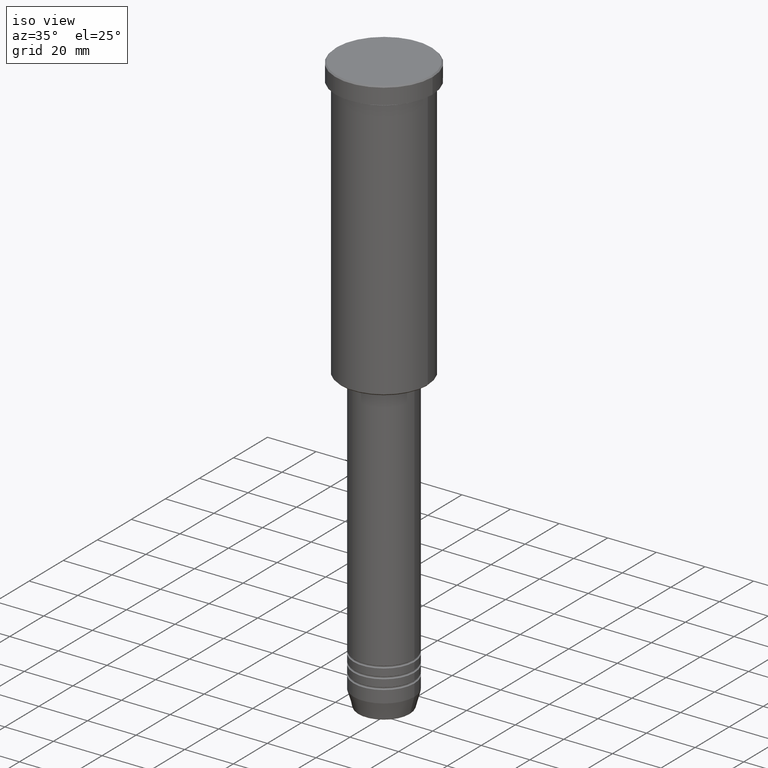
[diagram: clean part render]
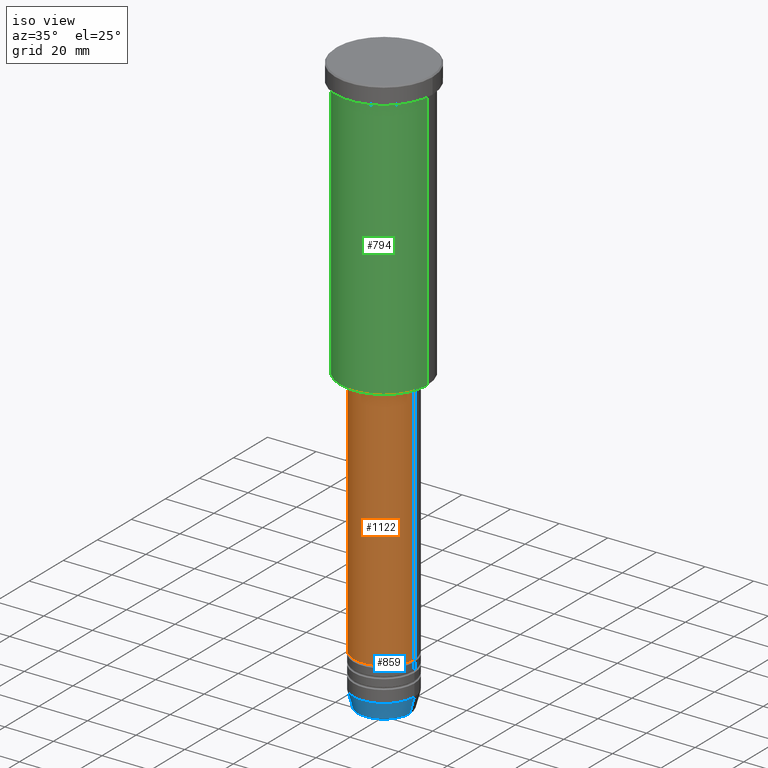
[diagram: same view with three faces highlighted in distinct colors, each labeled with its STEP entity id]
A machine part, iso view with three faces highlighted in distinct colors.
Their STEP definitions:

[orange] entity #1122 — the highlighted cylindrical surface (partial cylindrical patch) has radius 12.5 mm, axis along (-0, -0, 1).
#26 = CIRCLE ( 'NONE', #619, 12.50000000000000000 ) ;
#27 = CARTESIAN_POINT ( 'NONE',  ( 0.000000000000000000, 0.000000000000000000, 0.000000000000000000 ) ) ;
#28 = VERTEX_POINT ( 'NONE', #1174 ) ;
#57 = EDGE_CURVE ( 'NONE', #589, #28, #342, .T. ) ;
#82 = CARTESIAN_POINT ( 'NONE',  ( -12.50000000000000000, 1.530808498934191521E-15, -117.0000000000000142 ) ) ;
#139 = DIRECTION ( 'NONE',  ( 1.000000000000000000, 0.000000000000000000, 0.000000000000000000 ) ) ;
#153 = EDGE_LOOP ( 'NONE', ( #399, #771, #229, #271 ) ) ;
#218 = EDGE_CURVE ( 'NONE', #653, #28, #492, .T. ) ;
#229 = ORIENTED_EDGE ( 'NONE', *, *, #218, .T. ) ;
#242 = DIRECTION ( 'NONE',  ( 1.000000000000000000, 0.000000000000000000, 0.000000000000000000 ) ) ;
#266 = CARTESIAN_POINT ( 'NONE',  ( 0.000000000000000000, 0.000000000000000000, -117.0000000000000142 ) ) ;
#271 = ORIENTED_EDGE ( 'NONE', *, *, #57, .F. ) ;
#330 = DIRECTION ( 'NONE',  ( -0.000000000000000000, -0.000000000000000000, 1.000000000000000000 ) ) ;
#334 = CARTESIAN_POINT ( 'NONE',  ( -12.50000000000000000, 1.530808498934191521E-15, -219.0000000000000000 ) ) ;
#342 = CIRCLE ( 'NONE', #424, 12.50000000000000000 ) ;
#387 = DIRECTION ( 'NONE',  ( -0.000000000000000000, -0.000000000000000000, 1.000000000000000000 ) ) ;
#396 = CARTESIAN_POINT ( 'NONE',  ( 12.50000000000000000, 0.000000000000000000, 0.000000000000000000 ) ) ;
#399 = ORIENTED_EDGE ( 'NONE', *, *, #827, .F. ) ;
#424 = AXIS2_PLACEMENT_3D ( 'NONE', #266, #640, #550 ) ;
#492 = LINE ( 'NONE', #396, #1128 ) ;
#550 = DIRECTION ( 'NONE',  ( 1.000000000000000000, 0.000000000000000000, 0.000000000000000000 ) ) ;
#589 = VERTEX_POINT ( 'NONE', #82 ) ;
#601 = CARTESIAN_POINT ( 'NONE',  ( 0.000000000000000000, 0.000000000000000000, -219.0000000000000000 ) ) ;
#619 = AXIS2_PLACEMENT_3D ( 'NONE', #601, #962, #139 ) ;
#640 = DIRECTION ( 'NONE',  ( -0.000000000000000000, -0.000000000000000000, 1.000000000000000000 ) ) ;
#653 = VERTEX_POINT ( 'NONE', #1026 ) ;
#695 = VECTOR ( 'NONE', #330, 1000.000000000000000 ) ;
#771 = ORIENTED_EDGE ( 'NONE', *, *, #808, .T. ) ;
#775 = DIRECTION ( 'NONE',  ( -0.000000000000000000, -0.000000000000000000, 1.000000000000000000 ) ) ;
#808 = EDGE_CURVE ( 'NONE', #1181, #653, #26, .T. ) ;
#827 = EDGE_CURVE ( 'NONE', #1181, #589, #1059, .T. ) ;
#833 = AXIS2_PLACEMENT_3D ( 'NONE', #27, #387, #242 ) ;
#849 = CYLINDRICAL_SURFACE ( 'NONE', #833, 12.50000000000000000 ) ;
#934 = FACE_OUTER_BOUND ( 'NONE', #153, .T. ) ;
#962 = DIRECTION ( 'NONE',  ( -0.000000000000000000, -0.000000000000000000, 1.000000000000000000 ) ) ;
#1026 = CARTESIAN_POINT ( 'NONE',  ( 12.50000000000000000, 0.000000000000000000, -219.0000000000000000 ) ) ;
#1059 = LINE ( 'NONE', #1158, #695 ) ;
#1122 = ADVANCED_FACE ( 'NONE', ( #934 ), #849, .T. ) ;
#1128 = VECTOR ( 'NONE', #775, 1000.000000000000000 ) ;
#1158 = CARTESIAN_POINT ( 'NONE',  ( -12.50000000000000000, 1.530808498934191521E-15, 0.000000000000000000 ) ) ;
#1174 = CARTESIAN_POINT ( 'NONE',  ( 12.50000000000000000, 0.000000000000000000, -117.0000000000000142 ) ) ;
#1181 = VERTEX_POINT ( 'NONE', #334 ) ;

[blue] entity #859 — the highlighted conical surface has half-angle 15 deg.
#9 = EDGE_CURVE ( 'NONE', #674, #337, #423, .T. ) ;
#22 = CARTESIAN_POINT ( 'NONE',  ( 12.50000000000000000, 0.000000000000000000, -233.0000000000000000 ) ) ;
#29 = LINE ( 'NONE', #22, #1109 ) ;
#61 = CARTESIAN_POINT ( 'NONE',  ( 0.000000000000000000, 0.000000000000000000, -233.0000000000000000 ) ) ;
#72 = DIRECTION ( 'NONE',  ( -0.000000000000000000, -0.000000000000000000, 1.000000000000000000 ) ) ;
#80 = ORIENTED_EDGE ( 'NONE', *, *, #115, .T. ) ;
#84 = AXIS2_PLACEMENT_3D ( 'NONE', #61, #72, #1137 ) ;
#111 = DIRECTION ( 'NONE',  ( -0.000000000000000000, -0.000000000000000000, 1.000000000000000000 ) ) ;
#115 = EDGE_CURVE ( 'NONE', #350, #728, #921, .T. ) ;
#159 = DIRECTION ( 'NONE',  ( 1.000000000000000000, 0.000000000000000000, 0.000000000000000000 ) ) ;
#183 = DIRECTION ( 'NONE',  ( -0.2588190451025213501, 3.169619151431772337E-17, 0.9659258262890680902 ) ) ;
#210 = CARTESIAN_POINT ( 'NONE',  ( -12.50000000000000000, 1.530808498934191521E-15, -233.0000000000000000 ) ) ;
#213 = CARTESIAN_POINT ( 'NONE',  ( -10.72365507213719127, 1.422038742429750516E-15, -239.6294095225512706 ) ) ;
#237 = FACE_OUTER_BOUND ( 'NONE', #1080, .T. ) ;
#337 = VERTEX_POINT ( 'NONE', #462 ) ;
#350 = VERTEX_POINT ( 'NONE', #213 ) ;
#423 = CIRCLE ( 'NONE', #1066, 12.50000000000000000 ) ;
#459 = CARTESIAN_POINT ( 'NONE',  ( 0.000000000000000000, 0.000000000000000000, -239.6294095225512706 ) ) ;
#462 = CARTESIAN_POINT ( 'NONE',  ( 12.50000000000000000, 0.000000000000000000, -233.0000000000000000 ) ) ;
#592 = EDGE_CURVE ( 'NONE', #350, #674, #647, .T. ) ;
#647 = LINE ( 'NONE', #1003, #714 ) ;
#669 = CARTESIAN_POINT ( 'NONE',  ( 10.72365507213719127, 0.000000000000000000, -239.6294095225512706 ) ) ;
#674 = VERTEX_POINT ( 'NONE', #210 ) ;
#679 = EDGE_CURVE ( 'NONE', #728, #337, #29, .T. ) ;
#701 = CARTESIAN_POINT ( 'NONE',  ( 0.000000000000000000, 0.000000000000000000, -233.0000000000000000 ) ) ;
#714 = VECTOR ( 'NONE', #183, 1000.000000000000000 ) ;
#728 = VERTEX_POINT ( 'NONE', #669 ) ;
#753 = DIRECTION ( 'NONE',  ( 1.000000000000000000, 0.000000000000000000, 0.000000000000000000 ) ) ;
#859 = ADVANCED_FACE ( 'NONE', ( #237 ), #1032, .T. ) ;
#919 = ORIENTED_EDGE ( 'NONE', *, *, #9, .F. ) ;
#921 = CIRCLE ( 'NONE', #1088, 10.72365507213719127 ) ;
#981 = DIRECTION ( 'NONE',  ( -0.000000000000000000, -0.000000000000000000, 1.000000000000000000 ) ) ;
#1003 = CARTESIAN_POINT ( 'NONE',  ( -12.50000000000000000, 1.530808498934191521E-15, -233.0000000000000000 ) ) ;
#1019 = DIRECTION ( 'NONE',  ( 0.2588190451025213501, 0.000000000000000000, 0.9659258262890680902 ) ) ;
#1032 = CONICAL_SURFACE ( 'NONE', #84, 12.50000000000000000, 0.2617993877991500740 ) ;
#1060 = ORIENTED_EDGE ( 'NONE', *, *, #679, .T. ) ;
#1066 = AXIS2_PLACEMENT_3D ( 'NONE', #701, #981, #159 ) ;
#1080 = EDGE_LOOP ( 'NONE', ( #1098, #80, #1060, #919 ) ) ;
#1088 = AXIS2_PLACEMENT_3D ( 'NONE', #459, #111, #753 ) ;
#1098 = ORIENTED_EDGE ( 'NONE', *, *, #592, .F. ) ;
#1109 = VECTOR ( 'NONE', #1019, 1000.000000000000000 ) ;
#1137 = DIRECTION ( 'NONE',  ( 1.000000000000000000, 0.000000000000000000, 0.000000000000000000 ) ) ;

[green] entity #794 — the highlighted cylindrical surface (partial cylindrical patch) has radius 18 mm, axis along (-0, -0, 1).
#24 = VECTOR ( 'NONE', #1089, 1000.000000000000000 ) ;
#34 = CARTESIAN_POINT ( 'NONE',  ( 0.000000000000000000, 0.000000000000000000, -7.999999999999996447 ) ) ;
#54 = FACE_OUTER_BOUND ( 'NONE', #816, .T. ) ;
#122 = DIRECTION ( 'NONE',  ( -0.000000000000000000, -0.000000000000000000, 1.000000000000000000 ) ) ;
#150 = AXIS2_PLACEMENT_3D ( 'NONE', #314, #504, #611 ) ;
#190 = CARTESIAN_POINT ( 'NONE',  ( 18.00000000000000000, 0.000000000000000000, 0.000000000000000000 ) ) ;
#249 = ORIENTED_EDGE ( 'NONE', *, *, #667, .F. ) ;
#278 = LINE ( 'NONE', #190, #24 ) ;
#288 = AXIS2_PLACEMENT_3D ( 'NONE', #704, #1164, #427 ) ;
#291 = CARTESIAN_POINT ( 'NONE',  ( -18.00000000000000000, 2.204364238465235428E-15, -115.5000000000000000 ) ) ;
#308 = EDGE_CURVE ( 'NONE', #349, #713, #278, .T. ) ;
#314 = CARTESIAN_POINT ( 'NONE',  ( 0.000000000000000000, 0.000000000000000000, -115.5000000000000000 ) ) ;
#331 = ORIENTED_EDGE ( 'NONE', *, *, #308, .T. ) ;
#349 = VERTEX_POINT ( 'NONE', #772 ) ;
#414 = CARTESIAN_POINT ( 'NONE',  ( -18.00000000000000000, 2.204364238465235428E-15, -7.999999999999996447 ) ) ;
#421 = ORIENTED_EDGE ( 'NONE', *, *, #703, .F. ) ;
#427 = DIRECTION ( 'NONE',  ( 1.000000000000000000, 0.000000000000000000, 0.000000000000000000 ) ) ;
#436 = VERTEX_POINT ( 'NONE', #414 ) ;
#484 = VECTOR ( 'NONE', #672, 1000.000000000000000 ) ;
#504 = DIRECTION ( 'NONE',  ( -0.000000000000000000, -0.000000000000000000, 1.000000000000000000 ) ) ;
#505 = ORIENTED_EDGE ( 'NONE', *, *, #742, .T. ) ;
#523 = CYLINDRICAL_SURFACE ( 'NONE', #288, 18.00000000000000000 ) ;
#564 = AXIS2_PLACEMENT_3D ( 'NONE', #34, #122, #940 ) ;
#583 = CARTESIAN_POINT ( 'NONE',  ( 18.00000000000000000, 0.000000000000000000, -7.999999999999996447 ) ) ;
#611 = DIRECTION ( 'NONE',  ( -1.000000000000000000, 0.000000000000000000, 0.000000000000000000 ) ) ;
#661 = LINE ( 'NONE', #861, #484 ) ;
#667 = EDGE_CURVE ( 'NONE', #436, #713, #1071, .T. ) ;
#672 = DIRECTION ( 'NONE',  ( -0.000000000000000000, -0.000000000000000000, 1.000000000000000000 ) ) ;
#675 = CIRCLE ( 'NONE', #150, 18.00000000000000000 ) ;
#703 = EDGE_CURVE ( 'NONE', #1121, #436, #661, .T. ) ;
#704 = CARTESIAN_POINT ( 'NONE',  ( 0.000000000000000000, 0.000000000000000000, 0.000000000000000000 ) ) ;
#713 = VERTEX_POINT ( 'NONE', #583 ) ;
#742 = EDGE_CURVE ( 'NONE', #1121, #349, #675, .T. ) ;
#772 = CARTESIAN_POINT ( 'NONE',  ( 18.00000000000000000, 0.000000000000000000, -115.5000000000000000 ) ) ;
#794 = ADVANCED_FACE ( 'NONE', ( #54 ), #523, .T. ) ;
#816 = EDGE_LOOP ( 'NONE', ( #421, #505, #331, #249 ) ) ;
#861 = CARTESIAN_POINT ( 'NONE',  ( -18.00000000000000000, 2.204364238465235428E-15, 0.000000000000000000 ) ) ;
#940 = DIRECTION ( 'NONE',  ( 1.000000000000000000, 0.000000000000000000, 0.000000000000000000 ) ) ;
#1071 = CIRCLE ( 'NONE', #564, 18.00000000000000000 ) ;
#1089 = DIRECTION ( 'NONE',  ( -0.000000000000000000, -0.000000000000000000, 1.000000000000000000 ) ) ;
#1121 = VERTEX_POINT ( 'NONE', #291 ) ;
#1164 = DIRECTION ( 'NONE',  ( -0.000000000000000000, -0.000000000000000000, 1.000000000000000000 ) ) ;